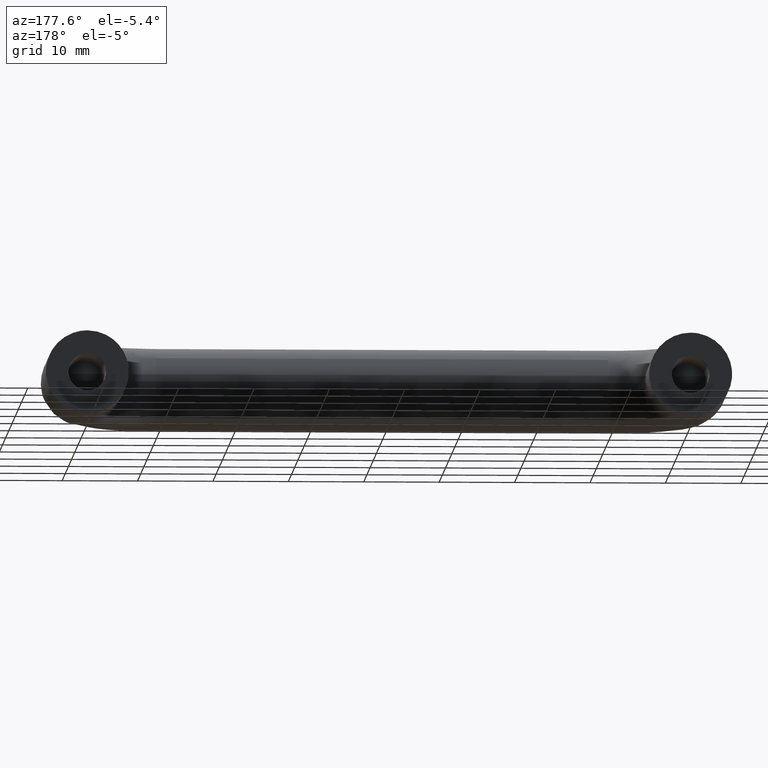
[diagram: clean part render]
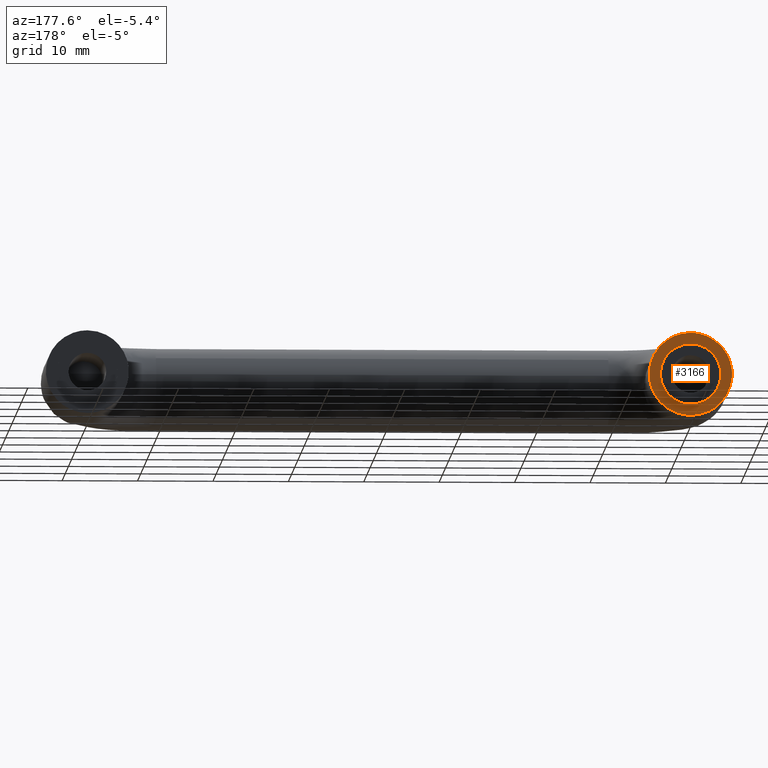
[diagram: same view with one face highlighted and labeled with its STEP entity id]
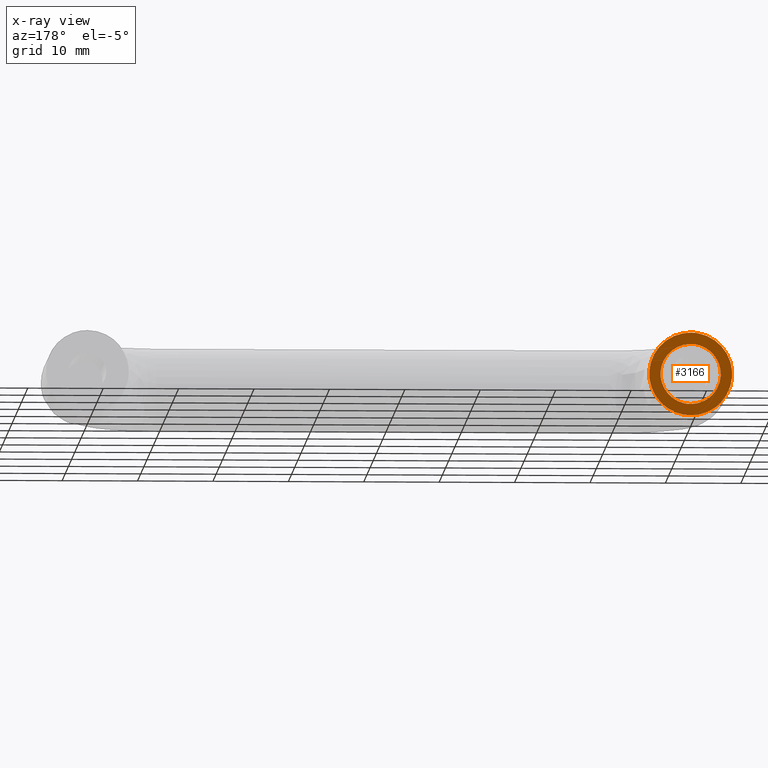
[diagram: x-ray of the same camera — body ghosted, the highlighted face saturated]
A machine part, auxiliary view. The second image highlights one B-rep face of the part: STEP entity #3166.
The next image is the same camera in x-ray: the body ghosted, the highlighted face saturated — about 0% of this face is hidden behind the body in this view.
In plain terms, the highlighted face is a freeform B-spline surface patch.
Its self-contained STEP definition (entity closure, byte-faithful):
#1934=CARTESIAN_POINT('',(-3.987669334919849,5.551115E-016,-0.313836383072272));
#1935=VERTEX_POINT('',#1934);
#1941=CARTESIAN_POINT('',(0.0,0.0,4.0));
#1942=VERTEX_POINT('',#1941);
#1943=CARTESIAN_POINT('',(-3.987669334919849,5.551115E-016,-0.313836383072272));
#1944=CARTESIAN_POINT('',(-4.000000000000001,0.0,-0.157160428192317));
#1945=CARTESIAN_POINT('',(-4.0,0.0,0.0));
#1946=CARTESIAN_POINT('',(-4.000000000000000,0.0,4.000000000000000));
#1947=CARTESIAN_POINT('',(0.0,0.0,4.0));
#1955=(BOUNDED_CURVE()B_SPLINE_CURVE(2,(#1943,#1944,#1945,#1946,#1947),.UNSPECIFIED.,.F.,.U.)B_SPLINE_CURVE_WITH_KNOTS((3,2,3),(0.236331300618934,0.250000000000000,0.500000000000000),.UNSPECIFIED.)CURVE()GEOMETRIC_REPRESENTATION_ITEM()RATIONAL_B_SPLINE_CURVE((0.969723356142947,0.983986122565144,1.0,0.707106781186548,1.0))REPRESENTATION_ITEM(''));
#1956=EDGE_CURVE('',#1935,#1942,#1955,.T.);
#1958=CARTESIAN_POINT('',(0.0,0.0,-4.0));
#1959=VERTEX_POINT('',#1958);
#1960=CARTESIAN_POINT('',(0.0,0.0,4.0));
#1961=CARTESIAN_POINT('',(4.000000000000000,0.0,4.000000000000000));
#1962=CARTESIAN_POINT('',(4.0,0.0,0.0));
#1963=CARTESIAN_POINT('',(4.000000000000000,0.0,-4.000000000000000));
#1964=CARTESIAN_POINT('',(0.0,0.0,-4.0));
#1972=(BOUNDED_CURVE()B_SPLINE_CURVE(2,(#1960,#1961,#1962,#1963,#1964),.UNSPECIFIED.,.F.,.U.)B_SPLINE_CURVE_WITH_KNOTS((3,2,3),(0.500000000000000,0.750000000000000,1.0),.UNSPECIFIED.)CURVE()GEOMETRIC_REPRESENTATION_ITEM()RATIONAL_B_SPLINE_CURVE((1.0,0.707106781186548,1.0,0.707106781186548,1.0))REPRESENTATION_ITEM(''));
#1973=EDGE_CURVE('',#1942,#1959,#1972,.T.);
#1975=CARTESIAN_POINT('',(-2.886614488429148,-3.892505E-016,-2.769017297741190));
#1976=VERTEX_POINT('',#1975);
#1977=CARTESIAN_POINT('',(0.0,0.0,-4.0));
#1978=CARTESIAN_POINT('',(-1.705780535908785,0.0,-4.000000000000001));
#1979=CARTESIAN_POINT('',(-2.886614488429148,-3.892505E-016,-2.769017297741190));
#1987=(BOUNDED_CURVE()B_SPLINE_CURVE(2,(#1977,#1978,#1979),.UNSPECIFIED.,.F.,.U.)B_SPLINE_CURVE_WITH_KNOTS((3,3),(0.0,0.128137072741580),.UNSPECIFIED.)CURVE()GEOMETRIC_REPRESENTATION_ITEM()RATIONAL_B_SPLINE_CURVE((1.0,0.849878081261541,0.853645628295045))REPRESENTATION_ITEM(''));
#1988=EDGE_CURVE('',#1959,#1976,#1987,.T.);
#2023=CARTESIAN_POINT('',(-2.886614488429148,-3.892505E-016,-2.769017297741190));
#2024=CARTESIAN_POINT('',(-3.875581280617579,0.0,-1.738050148047081));
#2025=CARTESIAN_POINT('',(-3.987669334919849,5.551115E-016,-0.313836383072272));
#2033=(BOUNDED_CURVE()B_SPLINE_CURVE(2,(#2023,#2024,#2025),.UNSPECIFIED.,.F.,.U.)B_SPLINE_CURVE_WITH_KNOTS((3,3),(0.128137072741580,0.236331300618934),.UNSPECIFIED.)CURVE()GEOMETRIC_REPRESENTATION_ITEM()RATIONAL_B_SPLINE_CURVE((0.853645628295046,0.856826806337904,0.969723356142947))REPRESENTATION_ITEM(''));
#2034=EDGE_CURVE('',#1976,#1935,#2033,.T.);
#2538=CARTESIAN_POINT('',(-3.969093967013843,-3.892505E-016,-3.807399779510198));
#2539=VERTEX_POINT('',#2538);
#2545=CARTESIAN_POINT('',(0.0,0.0,-5.500000000000000));
#2546=VERTEX_POINT('',#2545);
#2547=CARTESIAN_POINT('',(0.0,0.0,-5.500000000000000));
#2548=CARTESIAN_POINT('',(-2.345447421959609,0.0,-5.500000000000000));
#2549=CARTESIAN_POINT('',(-3.969093967013843,-3.892505E-016,-3.807399779510198));
#2557=(BOUNDED_CURVE()B_SPLINE_CURVE(2,(#2547,#2548,#2549),.UNSPECIFIED.,.F.,.U.)B_SPLINE_CURVE_WITH_KNOTS((3,3),(0.0,0.128137034904476),.UNSPECIFIED.)CURVE()GEOMETRIC_REPRESENTATION_ITEM()RATIONAL_B_SPLINE_CURVE((1.0,0.849878125590466,0.853645626070050))REPRESENTATION_ITEM(''));
#2558=EDGE_CURVE('',#2546,#2539,#2557,.T.);
#2560=CARTESIAN_POINT('',(0.0,0.0,5.500000000000000));
#2561=VERTEX_POINT('',#2560);
#2562=CARTESIAN_POINT('',(0.0,0.0,5.500000000000000));
#2563=CARTESIAN_POINT('',(5.500000000000001,0.0,5.500000000000001));
#2564=CARTESIAN_POINT('',(5.500000000000000,0.0,0.0));
#2565=CARTESIAN_POINT('',(5.500000000000001,0.0,-5.500000000000001));
#2566=CARTESIAN_POINT('',(0.0,0.0,-5.500000000000000));
#2574=(BOUNDED_CURVE()B_SPLINE_CURVE(2,(#2562,#2563,#2564,#2565,#2566),.UNSPECIFIED.,.F.,.U.)B_SPLINE_CURVE_WITH_KNOTS((3,2,3),(0.500000000000000,0.750000000000000,1.0),.UNSPECIFIED.)CURVE()GEOMETRIC_REPRESENTATION_ITEM()RATIONAL_B_SPLINE_CURVE((1.0,0.707106781186548,1.0,0.707106781186548,1.0))REPRESENTATION_ITEM(''));
#2575=EDGE_CURVE('',#2561,#2546,#2574,.T.);
#2577=CARTESIAN_POINT('',(-5.483045297404471,-3.885781E-016,-0.431525510961358));
#2578=VERTEX_POINT('',#2577);
#2579=CARTESIAN_POINT('',(-5.483045297404471,-3.885781E-016,-0.431525510961358));
#2580=CARTESIAN_POINT('',(-5.500000000000001,0.0,-0.216096075248617));
#2581=CARTESIAN_POINT('',(-5.500000000000000,0.0,0.0));
#2582=CARTESIAN_POINT('',(-5.500000000000001,0.0,5.500000000000001));
#2583=CARTESIAN_POINT('',(0.0,0.0,5.500000000000000));
#2591=(BOUNDED_CURVE()B_SPLINE_CURVE(2,(#2579,#2580,#2581,#2582,#2583),.UNSPECIFIED.,.F.,.U.)B_SPLINE_CURVE_WITH_KNOTS((3,2,3),(0.236331270340112,0.250000000000000,0.500000000000000),.UNSPECIFIED.)CURVE()GEOMETRIC_REPRESENTATION_ITEM()RATIONAL_B_SPLINE_CURVE((0.969723292953365,0.983986087091298,1.0,0.707106781186548,1.0))REPRESENTATION_ITEM(''));
#2592=EDGE_CURVE('',#2578,#2561,#2591,.T.);
#2683=CARTESIAN_POINT('',(-3.969093967013843,-3.892505E-016,-3.807399779510198));
#2684=CARTESIAN_POINT('',(-5.328923820705207,0.0,-2.389820123890180));
#2685=CARTESIAN_POINT('',(-5.483045297404471,-3.885781E-016,-0.431525510961358));
#2693=(BOUNDED_CURVE()B_SPLINE_CURVE(2,(#2683,#2684,#2685),.UNSPECIFIED.,.F.,.U.)B_SPLINE_CURVE_WITH_KNOTS((3,3),(0.128137034904476,0.236331270340112),.UNSPECIFIED.)CURVE()GEOMETRIC_REPRESENTATION_ITEM()RATIONAL_B_SPLINE_CURVE((0.853645626070050,0.856826765966067,0.969723292953365))REPRESENTATION_ITEM(''));
#2694=EDGE_CURVE('',#2539,#2578,#2693,.T.);
#3149=CARTESIAN_POINT('',(-6.047847381466991,0.0,6.049449978679865));
#3150=CARTESIAN_POINT('',(-6.047847381466991,0.0,-6.049450273722857));
#3151=CARTESIAN_POINT('',(6.049374032253390,0.0,6.049449978679865));
#3152=CARTESIAN_POINT('',(6.049374032253390,0.0,-6.049450273722857));
#3153=B_SPLINE_SURFACE_WITH_KNOTS('',1,1,((#3149,#3151),(#3150,#3152)),.UNSPECIFIED.,.F.,.F.,.U.,(2,2),(2,2),(0.0,12.098900252402720),(0.0,12.097221413720380),.UNSPECIFIED.);
#3154=ORIENTED_EDGE('',*,*,#2558,.T.);
#3155=ORIENTED_EDGE('',*,*,#2694,.T.);
#3156=ORIENTED_EDGE('',*,*,#2592,.T.);
#3157=ORIENTED_EDGE('',*,*,#2575,.T.);
#3158=EDGE_LOOP('',(#3154,#3155,#3156,#3157));
#3159=FACE_OUTER_BOUND('',#3158,.T.);
#3160=ORIENTED_EDGE('',*,*,#1973,.F.);
#3161=ORIENTED_EDGE('',*,*,#1956,.F.);
#3162=ORIENTED_EDGE('',*,*,#2034,.F.);
#3163=ORIENTED_EDGE('',*,*,#1988,.F.);
#3164=EDGE_LOOP('',(#3160,#3161,#3162,#3163));
#3165=FACE_BOUND('',#3164,.T.);
#3166=ADVANCED_FACE('',(#3159,#3165),#3153,.F.);